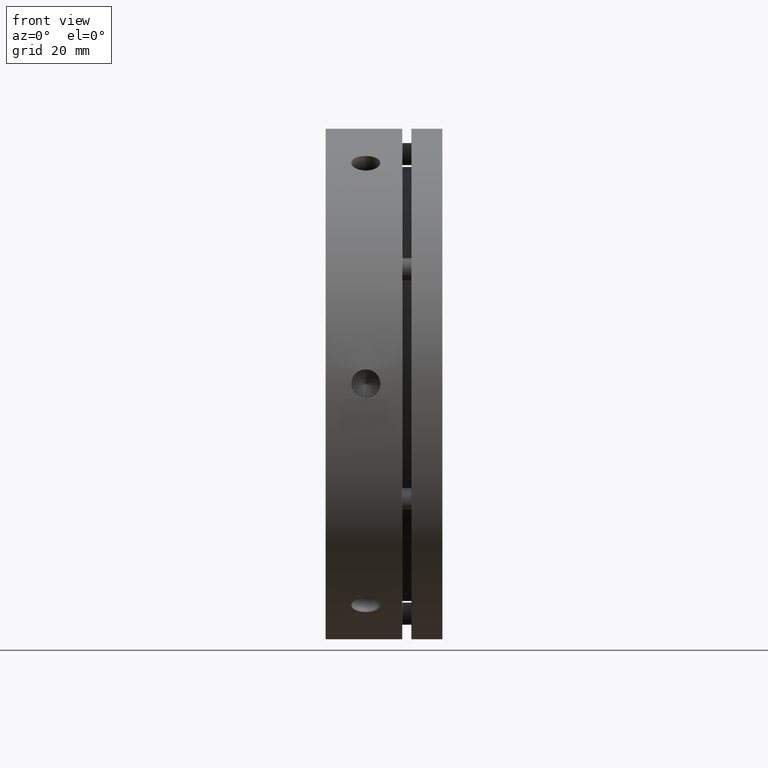
[diagram: clean part render]
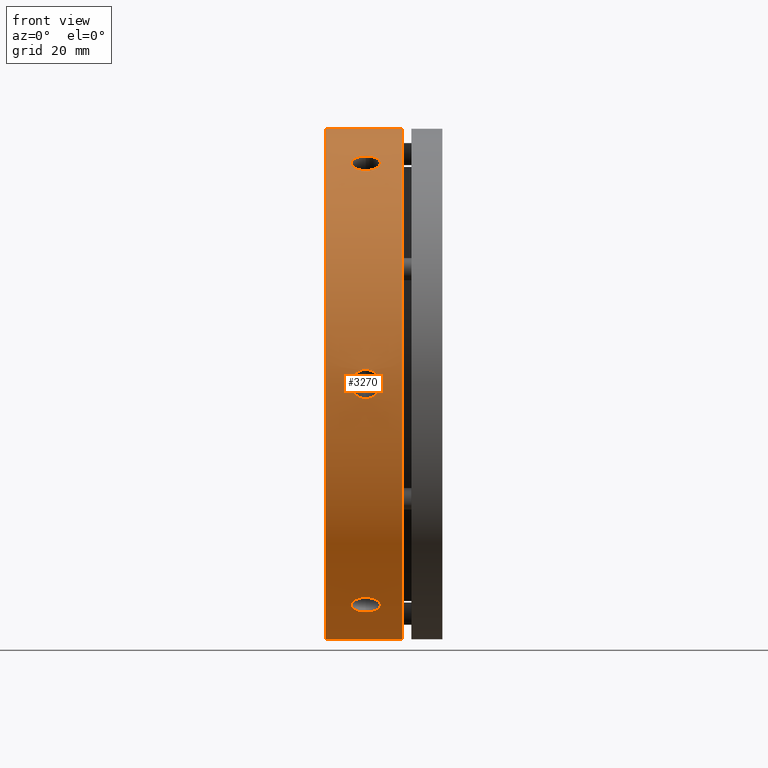
[diagram: same view with one face highlighted and labeled with its STEP entity id]
A machine part, front view. The second image highlights one B-rep face of the part: STEP entity #3270.
In plain terms, the highlighted cylindrical surface (partial cylindrical patch) has radius 70 mm, axis along (1, 0, 0).
Its self-contained STEP definition (entity closure, byte-faithful):
#1 = EDGE_LOOP ( 'NONE', ( #1935, #1934 ) ) ;
#2 = EDGE_LOOP ( 'NONE', ( #1933, #1932 ) ) ;
#3 = EDGE_LOOP ( 'NONE', ( #1941, #1940, #1939, #1938 ) ) ;
#340 = FACE_OUTER_BOUND ( 'NONE', #3, .T. ) ;
#383 = FACE_BOUND ( 'NONE', #1, .T. ) ;
#416 = FACE_BOUND ( 'NONE', #1711, .T. ) ;
#419 = FACE_BOUND ( 'NONE', #2, .T. ) ;
#430 = CYLINDRICAL_SURFACE ( 'NONE', #1379, 70.00000000000000000 ) ;
#480 = VECTOR ( 'NONE', #2717, 1000.000000000000000 ) ;
#481 = LINE ( 'NONE', #2716, #480 ) ;
#607 = EDGE_CURVE ( 'NONE', #1891, #1890, #3687, .T. ) ;
#623 = EDGE_CURVE ( 'NONE', #1887, #1886, #3694, .T. ) ;
#711 = CARTESIAN_POINT ( 'NONE',  ( 8.358326109823563500, -32.35642516407697400, -62.07331679830414800 ) ) ;
#712 = CARTESIAN_POINT ( 'NONE',  ( 7.984942764260604300, -32.68732003523729900, -61.89970934225068100 ) ) ;
#713 = CARTESIAN_POINT ( 'NONE',  ( 7.819331952204462000, -32.86622731628508400, -61.80500026974880300 ) ) ;
#714 = AXIS2_PLACEMENT_3D ( 'NONE', #2328, #2329, #2330 ) ;
#722 = AXIS2_PLACEMENT_3D ( 'NONE', #2430, #2431, #2432 ) ;
#1295 = CARTESIAN_POINT ( 'NONE',  ( 10.47409722909261200, -69.88712906306791700, -3.973891779846702400 ) ) ;
#1302 = CARTESIAN_POINT ( 'NONE',  ( 10.73909664343707400, -69.88562083862461800, -3.999999999999980900 ) ) ;
#1305 = CARTESIAN_POINT ( 'NONE',  ( 10.99999999999998200, -69.88562083862459000, -3.999999999999981800 ) ) ;
#1306 = CARTESIAN_POINT ( 'NONE',  ( 9.961171157766600000, -69.89287088335204600, -3.871591951500740000 ) ) ;
#1307 = CARTESIAN_POINT ( 'NONE',  ( 9.711863930167631100, -69.89707221894985900, -3.795967999799475300 ) ) ;
#1308 = CARTESIAN_POINT ( 'NONE',  ( 9.227641483574140900, -69.90767243269822000, -3.595471162331520500 ) ) ;
#1309 = CARTESIAN_POINT ( 'NONE',  ( 8.993538445030035100, -69.91408303429348300, -3.470160666509753100 ) ) ;
#1310 = CARTESIAN_POINT ( 'NONE',  ( 8.560276930385896300, -69.92785830562034700, -3.180511651693273200 ) ) ;
#1311 = CARTESIAN_POINT ( 'NONE',  ( 8.358326109823556400, -69.93528182652920600, -3.015172231411342700 ) ) ;
#1312 = CARTESIAN_POINT ( 'NONE',  ( 7.984942764260602600, -69.95038079488070100, -2.641805138977804100 ) ) ;
#1313 = CARTESIAN_POINT ( 'NONE',  ( 7.819331952204465500, -69.95781397264907800, -2.439512352417471300 ) ) ;
#1314 = CARTESIAN_POINT ( 'NONE',  ( 7.529775383356610300, -69.97157669719518900, -2.006342657151847700 ) ) ;
#1315 = CARTESIAN_POINT ( 'NONE',  ( 7.404613441409155800, -69.97797343220388200, -1.772563259579204200 ) ) ;
#1316 = CARTESIAN_POINT ( 'NONE',  ( 7.203945541165426300, -69.98857042851334100, -1.287926845930296600 ) ) ;
#1317 = CARTESIAN_POINT ( 'NONE',  ( 7.128357650375536800, -69.99276398680682100, -1.038593095255783100 ) ) ;
#1318 = CARTESIAN_POINT ( 'NONE',  ( 7.026138770024434000, -69.99849262023106200, -0.5260389964781374500 ) ) ;
#1319 = CARTESIAN_POINT ( 'NONE',  ( 6.999817335921259900, -70.00001043794482300, -0.2614808252597358200 ) ) ;
#1320 = CARTESIAN_POINT ( 'NONE',  ( 7.000184595522777700, -69.99998945168694300, 0.2670398810689925100 ) ) ;
#1321 = CARTESIAN_POINT ( 'NONE',  ( 7.026295354285892400, -69.99848382314917200, 0.5268749624503371600 ) ) ;
#1322 = CARTESIAN_POINT ( 'NONE',  ( 7.128260745323915500, -69.99276943931067800, 1.038056347809311700 ) ) ;
#1323 = CARTESIAN_POINT ( 'NONE',  ( 7.205360116913516900, -69.98849342827199400, 1.292060696593722000 ) ) ;
#1324 = CARTESIAN_POINT ( 'NONE',  ( 7.406433696974252400, -69.97787964272140500, 1.776230253022029500 ) ) ;
#1325 = CARTESIAN_POINT ( 'NONE',  ( 7.529430487652942500, -69.97159279482079300, 2.005856868598513600 ) ) ;
#1326 = CARTESIAN_POINT ( 'NONE',  ( 7.819962168245790000, -69.95778431393871700, 2.440424943723678900 ) ) ;
#1327 = CARTESIAN_POINT ( 'NONE',  ( 7.988988254758817600, -69.95021213811574500, 2.646101050891392700 ) ) ;
#1328 = CARTESIAN_POINT ( 'NONE',  ( 8.358145122983289700, -69.93529426283005500, 3.014738016858497200 ) ) ;
#1329 = CARTESIAN_POINT ( 'NONE',  ( 8.559568101244570600, -69.92787661822102100, 3.180166371659435900 ) ) ;
#1330 = CARTESIAN_POINT ( 'NONE',  ( 8.996959498716183400, -69.91397851453211800, 3.472318354372658300 ) ) ;
#1331 = CARTESIAN_POINT ( 'NONE',  ( 9.229718381627362700, -69.90762475236191200, 3.596380207422794000 ) ) ;
#1332 = CARTESIAN_POINT ( 'NONE',  ( 9.711075744254834800, -69.89709169375892400, 3.795592426439149400 ) ) ;
#1333 = CARTESIAN_POINT ( 'NONE',  ( 9.963230547505419900, -69.89283406302762100, 3.872257680621692200 ) ) ;
#1334 = CARTESIAN_POINT ( 'NONE',  ( 10.47954753236176700, -69.88708201975067900, 3.974720074632786200 ) ) ;
#1335 = CARTESIAN_POINT ( 'NONE',  ( 10.73909642550376900, -69.88562083862461800, 4.000000000000020400 ) ) ;
#1336 = CARTESIAN_POINT ( 'NONE',  ( 10.99999999999998200, -69.88562083862459000, 4.000000000000018700 ) ) ;
#1379 = AXIS2_PLACEMENT_3D ( 'NONE', #4324, #4325, #4323 ) ;
#1711 = EDGE_LOOP ( 'NONE', ( #1937, #1936 ) ) ;
#1712 = CARTESIAN_POINT ( 'NONE',  ( 10.73909664343707600, -31.47870880417457000, -62.52272300549602600 ) ) ;
#1713 = CARTESIAN_POINT ( 'NONE',  ( 10.99999999999998200, -31.47870880417457700, -62.52272300549603300 ) ) ;
#1715 = CARTESIAN_POINT ( 'NONE',  ( 10.47409722909261200, -31.50207329829656500, -62.51097505610191300 ) ) ;
#1886 = VERTEX_POINT ( 'NONE', #3932 ) ;
#1887 = VERTEX_POINT ( 'NONE', #3933 ) ;
#1890 = VERTEX_POINT ( 'NONE', #3936 ) ;
#1891 = VERTEX_POINT ( 'NONE', #3937 ) ;
#1894 = VERTEX_POINT ( 'NONE', #3940 ) ;
#1895 = VERTEX_POINT ( 'NONE', #3941 ) ;
#1897 = VERTEX_POINT ( 'NONE', #3943 ) ;
#1898 = VERTEX_POINT ( 'NONE', #3944 ) ;
#1900 = VERTEX_POINT ( 'NONE', #3946 ) ;
#1903 = VERTEX_POINT ( 'NONE', #3949 ) ;
#1932 = ORIENTED_EDGE ( 'NONE', *, *, #3634, .T. ) ;
#1933 = ORIENTED_EDGE ( 'NONE', *, *, #623, .T. ) ;
#1934 = ORIENTED_EDGE ( 'NONE', *, *, #3635, .T. ) ;
#1935 = ORIENTED_EDGE ( 'NONE', *, *, #607, .T. ) ;
#1936 = ORIENTED_EDGE ( 'NONE', *, *, #3636, .T. ) ;
#1937 = ORIENTED_EDGE ( 'NONE', *, *, #3683, .T. ) ;
#1938 = ORIENTED_EDGE ( 'NONE', *, *, #3633, .T. ) ;
#1939 = ORIENTED_EDGE ( 'NONE', *, *, #3678, .T. ) ;
#1940 = ORIENTED_EDGE ( 'NONE', *, *, #3637, .T. ) ;
#1941 = ORIENTED_EDGE ( 'NONE', *, *, #3672, .F. ) ;
#2319 = CARTESIAN_POINT ( 'NONE',  ( 10.99999999999998200, -38.40691203445007300, -58.52272300549602600 ) ) ;
#2323 = CARTESIAN_POINT ( 'NONE',  ( 10.99999999999998200, -69.88562083862459000, 4.000000000000018700 ) ) ;
#2327 = CARTESIAN_POINT ( 'NONE',  ( 11.26090357459180200, -38.40691203445008700, -58.52272300549603300 ) ) ;
#2328 = CARTESIAN_POINT ( 'NONE',  ( 20.99999999999998600, 0.0000000000000000000, 0.0000000000000000000 ) ) ;
#2329 = DIRECTION ( 'NONE',  ( -1.000000000000000000, -0.0000000000000000000, -0.0000000000000000000 ) ) ;
#2330 = DIRECTION ( 'NONE',  ( 0.0000000000000000000, 0.0000000000000000000, -1.000000000000000000 ) ) ;
#2331 = CARTESIAN_POINT ( 'NONE',  ( 11.26090357459180200, -69.88562083862459000, 4.000000000000017800 ) ) ;
#2332 = CARTESIAN_POINT ( 'NONE',  ( 11.52590321161878100, -38.38505572778927900, -58.53708330057948200 ) ) ;
#2333 = CARTESIAN_POINT ( 'NONE',  ( 12.03882968743154600, -38.29933224683603800, -58.59320586903346900 ) ) ;
#2334 = CARTESIAN_POINT ( 'NONE',  ( 12.28813710574236300, -38.23594054770920500, -58.63465637574918800 ) ) ;
#2335 = CARTESIAN_POINT ( 'NONE',  ( 12.77235990841453600, -38.06760501901164400, -58.74408502978541700 ) ) ;
#2336 = CARTESIAN_POINT ( 'NONE',  ( 13.00646307755802100, -37.96228808271799700, -58.81229212645484200 ) ) ;
#2337 = CARTESIAN_POINT ( 'NONE',  ( 13.43972480559535400, -37.71833193225105400, -58.96904660829496000 ) ) ;
#2338 = CARTESIAN_POINT ( 'NONE',  ( 13.64167570933734600, -37.57885533538701100, -59.05814541225753800 ) ) ;
#2339 = CARTESIAN_POINT ( 'NONE',  ( 14.01505916087716100, -37.26305891989633100, -59.25790536110464800 ) ) ;
#2340 = CARTESIAN_POINT ( 'NONE',  ( 14.18066991554423200, -37.09158461055000100, -59.36548919666434200 ) ) ;
#2341 = CARTESIAN_POINT ( 'NONE',  ( 14.47022637849527600, -36.72332948811453000, -59.59399321901695100 ) ) ;
#2342 = CARTESIAN_POINT ( 'NONE',  ( 14.59538823452395200, -36.52406865213805500, -59.71642282834630300 ) ) ;
#2343 = CARTESIAN_POINT ( 'NONE',  ( 14.79605580135352700, -36.10965922406310800, -59.96791856519592300 ) ) ;
#2344 = CARTESIAN_POINT ( 'NONE',  ( 14.87164349298426700, -35.89582639141937600, -60.09621730158370700 ) ) ;
#2345 = CARTESIAN_POINT ( 'NONE',  ( 14.97386188045529900, -35.45480531162257900, -60.35745576643391500 ) ) ;
#2346 = CARTESIAN_POINT ( 'NONE',  ( 15.00018301003966500, -35.22644943742638200, -60.49104969678276700 ) ) ;
#2347 = CARTESIAN_POINT ( 'NONE',  ( 14.99981505114989800, -34.76872705177847700, -60.75529156036637300 ) ) ;
#2348 = CARTESIAN_POINT ( 'NONE',  ( 14.97370400284950000, -34.54295068189450300, -60.88390503917526800 ) ) ;
#2349 = CARTESIAN_POINT ( 'NONE',  ( 14.87173810970992500, -34.09739786729841900, -61.13454664353259500 ) ) ;
#2350 = CARTESIAN_POINT ( 'NONE',  ( 14.79463851539914600, -33.87528585546817100, -61.25784554858627500 ) ) ;
#2351 = CARTESIAN_POINT ( 'NONE',  ( 14.59356464880624300, -33.45067639006342800, -61.49073818138292300 ) ) ;
#2352 = CARTESIAN_POINT ( 'NONE',  ( 14.47056775947381100, -33.24867074539675800, -61.60010676582997700 ) ) ;
#2353 = CARTESIAN_POINT ( 'NONE',  ( 14.18003594599575100, -32.86542000727610700, -61.80543202375329800 ) ) ;
#2354 = CARTESIAN_POINT ( 'NONE',  ( 14.01100985540713900, -32.68351345445585600, -61.90171223082227000 ) ) ;
#2355 = CARTESIAN_POINT ( 'NONE',  ( 13.64185306818236900, -32.35680603325003100, -62.07311118480981100 ) ) ;
#2356 = CARTESIAN_POINT ( 'NONE',  ( 13.44043016016046700, -32.20983227178469800, -62.14940137639079200 ) ) ;
#2357 = CARTESIAN_POINT ( 'NONE',  ( 13.00303895313463400, -31.94987257011110800, -62.28344105116456600 ) ) ;
#2358 = CARTESIAN_POINT ( 'NONE',  ( 12.77028024414253900, -31.83925516559750300, -62.33996935819796900 ) ) ;
#2359 = CARTESIAN_POINT ( 'NONE',  ( 12.28892321856022800, -31.66146608180331200, -62.43045342324455800 ) ) ;
#2360 = CARTESIAN_POINT ( 'NONE',  ( 12.03676859265589300, -31.59294331804092000, -62.46509877844754800 ) ) ;
#2361 = CARTESIAN_POINT ( 'NONE',  ( 11.52045203420232700, -31.50133241489862400, -62.51134848156942100 ) ) ;
#2362 = CARTESIAN_POINT ( 'NONE',  ( 11.26090335665848700, -31.47870880417458000, -62.52272300549606100 ) ) ;
#2363 = CARTESIAN_POINT ( 'NONE',  ( 10.99999999999998200, -31.47870880417457700, -62.52272300549603300 ) ) ;
#2364 = CARTESIAN_POINT ( 'NONE',  ( 11.26090357459180100, -31.47870880417454100, 62.52272300549606100 ) ) ;
#2365 = CARTESIAN_POINT ( 'NONE',  ( 10.99999999999998200, -31.47870880417452700, 62.52272300549604700 ) ) ;
#2366 = CARTESIAN_POINT ( 'NONE',  ( 11.52590321161878400, -69.88712906564231300, 3.973891735657145500 ) ) ;
#2367 = CARTESIAN_POINT ( 'NONE',  ( 12.03882968743154100, -69.89287089517245000, 3.871591739223800400 ) ) ;
#2368 = CARTESIAN_POINT ( 'NONE',  ( 12.28813710574236100, -69.89707223742462400, 3.795967664033045100 ) ) ;
#2369 = CARTESIAN_POINT ( 'NONE',  ( 12.77235990841452600, -69.90767246737310400, 3.595470492803355600 ) ) ;
#2370 = CARTESIAN_POINT ( 'NONE',  ( 13.00646307755802200, -69.91408307766042200, 3.470159802189607000 ) ) ;
#2371 = CARTESIAN_POINT ( 'NONE',  ( 13.43972480559535900, -69.92785836585756000, 3.180510337555734900 ) ) ;
#2372 = CARTESIAN_POINT ( 'NONE',  ( 13.64167570933734600, -69.93528189510394100, 3.015170659456782400 ) ) ;
#2373 = CARTESIAN_POINT ( 'NONE',  ( 14.01505916087716300, -69.95038087771885700, 2.641802966794205300 ) ) ;
#2374 = CARTESIAN_POINT ( 'NONE',  ( 14.18066991554422700, -69.95781405767699800, 2.439509941024056600 ) ) ;
#2375 = CARTESIAN_POINT ( 'NONE',  ( 14.47022637849527300, -69.97157678468350600, 2.006339638744867800 ) ) ;
#2376 = CARTESIAN_POINT ( 'NONE',  ( 14.59538823452395200, -69.97797351854991600, 1.772559888145250900 ) ) ;
#2377 = CARTESIAN_POINT ( 'NONE',  ( 14.79605580135351900, -69.98857050156769300, 1.287922927439762300 ) ) ;
#2378 = CARTESIAN_POINT ( 'NONE',  ( 14.87164349298426400, -69.99276405023107400, 1.038588894013210600 ) ) ;
#2379 = CARTESIAN_POINT ( 'NONE',  ( 14.97386188045530300, -69.99849265733861600, 0.5260342028796334300 ) ) ;
#2380 = CARTESIAN_POINT ( 'NONE',  ( 15.00018301003966300, -70.00001045771402600, 0.2614752495478921400 ) ) ;
#2381 = CARTESIAN_POINT ( 'NONE',  ( 14.99981505114990400, -69.99998943149682900, -0.2670448960958208800 ) ) ;
#2382 = CARTESIAN_POINT ( 'NONE',  ( 14.97370400284950000, -69.99848378647244800, -0.5268797073940165700 ) ) ;
#2383 = CARTESIAN_POINT ( 'NONE',  ( 14.87173810970992200, -69.99276937579311700, -1.038060565740534600 ) ) ;
#2384 = CARTESIAN_POINT ( 'NONE',  ( 14.79463851539914300, -69.98849335391328500, -1.292064662998045500 ) ) ;
#2385 = CARTESIAN_POINT ( 'NONE',  ( 14.59356464880624300, -69.97787955756706400, -1.776233563124206500 ) ) ;
#2386 = CARTESIAN_POINT ( 'NONE',  ( 14.47056775947380600, -69.97159270774082500, -2.005859875336927400 ) ) ;
#2387 = CARTESIAN_POINT ( 'NONE',  ( 14.18003594599574600, -69.95778422808064100, -2.440427379530200300 ) ) ;
#2388 = CARTESIAN_POINT ( 'NONE',  ( 14.01100985540713100, -69.95021205687389500, -2.646103178921889800 ) ) ;
#2389 = CARTESIAN_POINT ( 'NONE',  ( 13.64185306818236600, -69.93529419460630000, -3.014739582284816000 ) ) ;
#2390 = CARTESIAN_POINT ( 'NONE',  ( 13.44043016016046400, -69.92787655784233900, -3.180167689194022300 ) ) ;
#2391 = CARTESIAN_POINT ( 'NONE',  ( 13.00303895313463400, -69.91397847047460300, -3.472319232190466100 ) ) ;
#2392 = CARTESIAN_POINT ( 'NONE',  ( 12.77028024414253500, -69.90762471814166200, -3.596380868116641100 ) ) ;
#2393 = CARTESIAN_POINT ( 'NONE',  ( 12.28892321856021900, -69.89709167521259300, -3.795592763721251700 ) ) ;
#2394 = CARTESIAN_POINT ( 'NONE',  ( 12.03676859265588900, -69.89283405106033300, -3.872257895478524900 ) ) ;
#2395 = CARTESIAN_POINT ( 'NONE',  ( 11.52045203420232700, -69.88708201731019200, -3.974720116424315600 ) ) ;
#2396 = CARTESIAN_POINT ( 'NONE',  ( 11.26090335665847600, -69.88562083862459000, -3.999999999999981800 ) ) ;
#2397 = CARTESIAN_POINT ( 'NONE',  ( 10.99999999999998200, -69.88562083862459000, -3.999999999999981800 ) ) ;
#2398 = CARTESIAN_POINT ( 'NONE',  ( 11.52590321161878400, -31.50207333785303000, 62.51097503623663700 ) ) ;
#2399 = CARTESIAN_POINT ( 'NONE',  ( 12.03882968743154400, -31.59353864833642300, 62.46479760825722100 ) ) ;
#2400 = CARTESIAN_POINT ( 'NONE',  ( 12.28813710574236100, -31.66113168971541800, 62.43062403978224500 ) ) ;
#2401 = CARTESIAN_POINT ( 'NONE',  ( 12.77235990841452700, -31.84006744836149500, 62.33955552258877500 ) ) ;
#2402 = CARTESIAN_POINT ( 'NONE',  ( 13.00646307755801700, -31.95179499494241100, 62.28245192864442000 ) ) ;
#2403 = CARTESIAN_POINT ( 'NONE',  ( 13.43972480559534900, -32.20952643360647700, 62.14955694585067600 ) ) ;
#2404 = CARTESIAN_POINT ( 'NONE',  ( 13.64167570933734200, -32.35642655971692200, 62.07331607171430200 ) ) ;
#2405 = CARTESIAN_POINT ( 'NONE',  ( 14.01505916087716300, -32.68732195782256900, 61.89970832789887800 ) ) ;
#2406 = CARTESIAN_POINT ( 'NONE',  ( 14.18066991554422500, -32.86622944712696200, 61.80499913768839800 ) ) ;
#2407 = CARTESIAN_POINT ( 'NONE',  ( 14.47022637849527300, -33.24824729656900500, 61.60033285776182800 ) ) ;
#2408 = CARTESIAN_POINT ( 'NONE',  ( 14.59538823452395400, -33.45390486641188900, 61.48898271649158400 ) ) ;
#2409 = CARTESIAN_POINT ( 'NONE',  ( 14.79605580135351900, -33.87891127750459200, 61.25584149263568900 ) ) ;
#2410 = CARTESIAN_POINT ( 'NONE',  ( 14.87164349298426200, -34.09693765881170400, 61.13480619559693000 ) ) ;
#2411 = CARTESIAN_POINT ( 'NONE',  ( 14.97386188045530300, -34.54368734571605900, 60.88348996931358700 ) ) ;
#2412 = CARTESIAN_POINT ( 'NONE',  ( 15.00018301003966700, -34.77356102028767300, 60.75252494633068800 ) ) ;
#2413 = CARTESIAN_POINT ( 'NONE',  ( 14.99981505114990600, -35.23126237971836600, 60.48824666427057700 ) ) ;
#2414 = CARTESIAN_POINT ( 'NONE',  ( 14.97370400284950700, -35.45553310457794500, 60.35702533178129400 ) ) ;
#2415 = CARTESIAN_POINT ( 'NONE',  ( 14.87173810970993100, -35.89537150849469100, 60.09648607779207900 ) ) ;
#2416 = CARTESIAN_POINT ( 'NONE',  ( 14.79463851539914100, -36.11320749844514200, 59.96578088558823100 ) ) ;
#2417 = CARTESIAN_POINT ( 'NONE',  ( 14.59356464880624700, -36.52720316750365000, 59.71450461825872900 ) ) ;
#2418 = CARTESIAN_POINT ( 'NONE',  ( 14.47056775947381600, -36.72292196234408100, 59.59424689049306800 ) ) ;
#2419 = CARTESIAN_POINT ( 'NONE',  ( 14.18003594599575300, -37.09236422080456200, 59.36500464422311300 ) ) ;
#2420 = CARTESIAN_POINT ( 'NONE',  ( 14.01100985540713900, -37.26669860241806000, 59.25560905190038600 ) ) ;
#2421 = CARTESIAN_POINT ( 'NONE',  ( 13.64185306818236900, -37.57848816135629000, 59.05837160252500700 ) ) ;
#2422 = CARTESIAN_POINT ( 'NONE',  ( 13.44043016016046900, -37.71804428605763300, 58.96923368719677700 ) ) ;
#2423 = CARTESIAN_POINT ( 'NONE',  ( 13.00303895313463800, -37.96410590036352100, 58.81112181897408700 ) ) ;
#2424 = CARTESIAN_POINT ( 'NONE',  ( 12.77028024414253900, -38.06836955254417600, 58.74358849008132900 ) ) ;
#2425 = CARTESIAN_POINT ( 'NONE',  ( 12.28892321856023000, -38.23562559340928900, 58.63486065952328400 ) ) ;
#2426 = CARTESIAN_POINT ( 'NONE',  ( 12.03676859265589100, -38.29989073301944600, 58.59284088296902100 ) ) ;
#2427 = CARTESIAN_POINT ( 'NONE',  ( 11.52045203420232900, -38.38574960241160700, 58.53662836514510600 ) ) ;
#2428 = CARTESIAN_POINT ( 'NONE',  ( 11.26090335665848000, -38.40691203445003800, 58.52272300549605400 ) ) ;
#2429 = CARTESIAN_POINT ( 'NONE',  ( 10.99999999999998200, -38.40691203445004500, 58.52272300549606900 ) ) ;
#2430 = CARTESIAN_POINT ( 'NONE',  ( -2.081668171172168500E-014, 0.0000000000000000000, 0.0000000000000000000 ) ) ;
#2431 = DIRECTION ( 'NONE',  ( 1.000000000000000000, 0.0000000000000000000, 0.0000000000000000000 ) ) ;
#2432 = DIRECTION ( 'NONE',  ( 0.0000000000000000000, 0.0000000000000000000, -1.000000000000000000 ) ) ;
#2574 = CARTESIAN_POINT ( 'NONE',  ( 15.99999999999997900, 8.572527594031473000E-015, 70.00000000000000000 ) ) ;
#2607 = DIRECTION ( 'NONE',  ( 1.000000000000000000, 0.0000000000000000000, 0.0000000000000000000 ) ) ;
#2716 = CARTESIAN_POINT ( 'NONE',  ( 15.99999999999997900, 0.0000000000000000000, -70.00000000000000000 ) ) ;
#2717 = DIRECTION ( 'NONE',  ( 1.000000000000000000, 0.0000000000000000000, 0.0000000000000000000 ) ) ;
#2727 = CARTESIAN_POINT ( 'NONE',  ( 10.73909664343707600, -38.40691203445005200, 58.52272300549605400 ) ) ;
#2729 = CARTESIAN_POINT ( 'NONE',  ( 10.99999999999998200, -38.40691203445004500, 58.52272300549606900 ) ) ;
#2730 = CARTESIAN_POINT ( 'NONE',  ( 10.47409722909261200, -38.38505576477137300, 58.53708327625523100 ) ) ;
#2731 = CARTESIAN_POINT ( 'NONE',  ( 9.961171157766596500, -38.29933242476303700, 58.59320575265820000 ) ) ;
#2732 = CARTESIAN_POINT ( 'NONE',  ( 9.711863930167625700, -38.23594082925406900, 58.63465619186637000 ) ) ;
#2733 = CARTESIAN_POINT ( 'NONE',  ( 9.227641483574137400, -38.06760558150256900, 58.74408466499200200 ) ) ;
#2734 = CARTESIAN_POINT ( 'NONE',  ( 8.993538445030024400, -37.96228880955769800, 58.81229165673788400 ) ) ;
#2735 = CARTESIAN_POINT ( 'NONE',  ( 8.560276930385894500, -37.71833304020894700, 58.96904589905925300 ) ) ;
#2736 = CARTESIAN_POINT ( 'NONE',  ( 8.358326109823554600, -37.57885666245225300, 59.05814456689282100 ) ) ;
#2737 = CARTESIAN_POINT ( 'NONE',  ( 7.984942764260600800, -37.26306075964339500, 59.25790420327289400 ) ) ;
#2738 = CARTESIAN_POINT ( 'NONE',  ( 7.819331952204463800, -37.09158665636402900, 59.36548791733132900 ) ) ;
#2739 = CARTESIAN_POINT ( 'NONE',  ( 7.529775383356605900, -36.72333205838744900, 59.59399163404632600 ) ) ;
#2740 = CARTESIAN_POINT ( 'NONE',  ( 7.404613441409152200, -36.52407152871247600, 59.71642106785146400 ) ) ;
#2741 = CARTESIAN_POINT ( 'NONE',  ( 7.203945541165424500, -36.10966258104826900, 59.96791654268374600 ) ) ;
#2742 = CARTESIAN_POINT ( 'NONE',  ( 7.128357650375535000, -35.89582999809002900, 60.09621514603541200 ) ) ;
#2743 = CARTESIAN_POINT ( 'NONE',  ( 7.026138770024433100, -35.45480944444685900, 60.35745333749857600 ) ) ;
#2744 = CARTESIAN_POINT ( 'NONE',  ( 6.999817335921259000, -35.22645425624986600, 60.49104689180624200 ) ) ;
#2745 = CARTESIAN_POINT ( 'NONE',  ( 7.000184595522780400, -34.76873140501416500, 60.75528907033812200 ) ) ;
#2746 = CARTESIAN_POINT ( 'NONE',  ( 7.026295354285893200, -34.54295480947461500, 60.88390269846642200 ) ) ;
#2747 = CARTESIAN_POINT ( 'NONE',  ( 7.128260745323917300, -34.09740155189278000, 61.13454458957482300 ) ) ;
#2748 = CARTESIAN_POINT ( 'NONE',  ( 7.205360116913518600, -33.87528932765442100, 61.25784362978065900 ) ) ;
#2749 = CARTESIAN_POINT ( 'NONE',  ( 7.406433696974252400, -33.45067929927318300, 61.49073660007765300 ) ) ;
#2750 = CARTESIAN_POINT ( 'NONE',  ( 7.529430487652947000, -33.24867339284857300, 61.60010533787423300 ) ) ;
#2751 = CARTESIAN_POINT ( 'NONE',  ( 7.819962168245793600, -32.86542215967543300, 61.80543088020527200 ) ) ;
#2752 = CARTESIAN_POINT ( 'NONE',  ( 7.988988254758817600, -32.68351533800521500, 61.90171123716449800 ) ) ;
#2753 = CARTESIAN_POINT ( 'NONE',  ( 8.358145122983286200, -32.35680742306085000, 62.07311046118020000 ) ) ;
#2754 = CARTESIAN_POINT ( 'NONE',  ( 8.559568101244570600, -32.20983344299245500, 62.14940076991296500 ) ) ;
#2755 = CARTESIAN_POINT ( 'NONE',  ( 8.996959498716185200, -31.94987335235235200, 62.28344065041058300 ) ) ;
#2756 = CARTESIAN_POINT ( 'NONE',  ( 9.229718381627362700, -31.83925575488526100, 62.33996905748662700 ) ) ;
#2757 = CARTESIAN_POINT ( 'NONE',  ( 9.711075744254836600, -31.66146638317134800, 62.43045327066509700 ) ) ;
#2758 = CARTESIAN_POINT ( 'NONE',  ( 9.963230547505416400, -31.59294351009601300, 62.46509868138311800 ) ) ;
#2759 = CARTESIAN_POINT ( 'NONE',  ( 10.47954753236176200, -31.50133245231137000, 62.51134846278714700 ) ) ;
#2760 = CARTESIAN_POINT ( 'NONE',  ( 10.73909642550375500, -31.47870880417452700, 62.52272300549604700 ) ) ;
#2761 = CARTESIAN_POINT ( 'NONE',  ( 10.99999999999998200, -31.47870880417452700, 62.52272300549604700 ) ) ;
#3270 = ADVANCED_FACE ( 'NONE', ( #340, #416, #383, #419 ), #430, .T. ) ;
#3308 = VECTOR ( 'NONE', #2607, 1000.000000000000000 ) ;
#3309 = LINE ( 'NONE', #2574, #3308 ) ;
#3364 = CIRCLE ( 'NONE', #722, 70.00000000000000000 ) ;
#3365 = CIRCLE ( 'NONE', #714, 70.00000000000000000 ) ;
#3633 = EDGE_CURVE ( 'NONE', #1897, #1898, #3365, .T. ) ;
#3634 = EDGE_CURVE ( 'NONE', #1886, #1887, #3693, .T. ) ;
#3635 = EDGE_CURVE ( 'NONE', #1890, #1891, #3698, .T. ) ;
#3636 = EDGE_CURVE ( 'NONE', #1894, #1895, #3686, .T. ) ;
#3637 = EDGE_CURVE ( 'NONE', #1900, #1903, #3364, .T. ) ;
#3672 = EDGE_CURVE ( 'NONE', #1900, #1898, #3309, .T. ) ;
#3678 = EDGE_CURVE ( 'NONE', #1903, #1897, #481, .T. ) ;
#3683 = EDGE_CURVE ( 'NONE', #1895, #1894, #3695, .T. ) ;
#3686 = B_SPLINE_CURVE_WITH_KNOTS ( 'NONE', 3,
 ( #2365, #2364, #2398, #2399, #2400, #2401, #2402, #2403, #2404, #2405, #2406, #2407, #2408, #2409, #2410, #2411, #2412, #2413, #2414, #2415, #2416, #2417, #2418, #2419, #2420, #2421, #2422, #2423, #2424, #2425, #2426, #2427, #2428, #2429 ),
 .UNSPECIFIED., .F., .F.,
 ( 4, 2, 2, 2, 2, 2, 2, 2, 2, 2, 2, 2, 2, 2, 2, 2, 4 ),
 ( 0.006255612392196417500, 0.007037221417040134000, 0.007818830441883847800, 0.008600439466727562500, 0.009382048491571277200, 0.01016365751641499200, 0.01094526654125870700, 0.01172687556610242000, 0.01250848459094613400, 0.01329009361578984900, 0.01407170264063356200, 0.01485331166547727800, 0.01563492069032099100, 0.01641652971516470800, 0.01719813874000842400, 0.01797974776485213700, 0.01876135678969585400 ),
 .UNSPECIFIED. ) ;
#3687 = B_SPLINE_CURVE_WITH_KNOTS ( 'NONE', 3,
 ( #1305, #1302, #1295, #1306, #1307, #1308, #1309, #1310, #1311, #1312, #1313, #1314, #1315, #1316, #1317, #1318, #1319, #1320, #1321, #1322, #1323, #1324, #1325, #1326, #1327, #1328, #1329, #1330, #1331, #1332, #1333, #1334, #1335, #1336 ),
 .UNSPECIFIED., .F., .F.,
 ( 4, 2, 2, 2, 2, 2, 2, 2, 2, 2, 2, 2, 2, 2, 2, 2, 4 ),
 ( 0.01876135678969587100, 0.01954296581425320200, 0.02032457483881053600, 0.02110618386336786700, 0.02188779288792519800, 0.02266940191248253300, 0.02345101093703986400, 0.02423261996159719500, 0.02501422898615452600, 0.02579583801071185700, 0.02657744703526919100, 0.02735905605982652200, 0.02814066508438384900, 0.02892227410894118400, 0.02970388313349851100, 0.03048549215805584200, 0.03126710118261317300 ),
 .UNSPECIFIED. ) ;
#3693 = B_SPLINE_CURVE_WITH_KNOTS ( 'NONE', 3,
 ( #2319, #2327, #2332, #2333, #2334, #2335, #2336, #2337, #2338, #2339, #2340, #2341, #2342, #2343, #2344, #2345, #2346, #2347, #2348, #2349, #2350, #2351, #2352, #2353, #2354, #2355, #2356, #2357, #2358, #2359, #2360, #2361, #2362, #2363 ),
 .UNSPECIFIED., .F., .F.,
 ( 4, 2, 2, 2, 2, 2, 2, 2, 2, 2, 2, 2, 2, 2, 2, 2, 4 ),
 ( 0.006255612392196408800, 0.007037221417040124400, 0.007818830441883840900, 0.008600439466727557300, 0.009382048491571272000, 0.01016365751641498700, 0.01094526654125870300, 0.01172687556610242000, 0.01250848459094613600, 0.01329009361578985100, 0.01407170264063356500, 0.01485331166547728200, 0.01563492069032099800, 0.01641652971516471500, 0.01719813874000843100, 0.01797974776485214400, 0.01876135678969585700 ),
 .UNSPECIFIED. ) ;
#3694 = B_SPLINE_CURVE_WITH_KNOTS ( 'NONE', 3,
 ( #1713, #1712, #1715, #4751, #4755, #4753, #4754, #4752, #711, #712, #713, #3699, #3742, #3743, #3744, #3745, #3746, #3747, #3748, #3749, #3750, #3751, #3752, #3753, #3754, #3755, #3756, #3757, #3758, #3759, #3760, #3761, #3762, #3763 ),
 .UNSPECIFIED., .F., .F.,
 ( 4, 2, 2, 2, 2, 2, 2, 2, 2, 2, 2, 2, 2, 2, 2, 2, 4 ),
 ( 0.01876135678969585700, 0.01954296581425318800, 0.02032457483881051900, 0.02110618386336785000, 0.02188779288792517700, 0.02266940191248250800, 0.02345101093703983900, 0.02423261996159717400, 0.02501422898615450500, 0.02579583801071183600, 0.02657744703526916700, 0.02735905605982649800, 0.02814066508438382900, 0.02892227410894116300, 0.02970388313349849400, 0.03048549215805582800, 0.03126710118261315900 ),
 .UNSPECIFIED. ) ;
#3695 = B_SPLINE_CURVE_WITH_KNOTS ( 'NONE', 3,
 ( #2729, #2727, #2730, #2731, #2732, #2733, #2734, #2735, #2736, #2737, #2738, #2739, #2740, #2741, #2742, #2743, #2744, #2745, #2746, #2747, #2748, #2749, #2750, #2751, #2752, #2753, #2754, #2755, #2756, #2757, #2758, #2759, #2760, #2761 ),
 .UNSPECIFIED., .F., .F.,
 ( 4, 2, 2, 2, 2, 2, 2, 2, 2, 2, 2, 2, 2, 2, 2, 2, 4 ),
 ( 0.01876135678969585400, 0.01954296581425318500, 0.02032457483881051200, 0.02110618386336784300, 0.02188779288792517400, 0.02266940191248250500, 0.02345101093703983600, 0.02423261996159716700, 0.02501422898615449800, 0.02579583801071182900, 0.02657744703526916000, 0.02735905605982649100, 0.02814066508438382200, 0.02892227410894115300, 0.02970388313349848300, 0.03048549215805581400, 0.03126710118261314500 ),
 .UNSPECIFIED. ) ;
#3698 = B_SPLINE_CURVE_WITH_KNOTS ( 'NONE', 3,
 ( #2323, #2331, #2366, #2367, #2368, #2369, #2370, #2371, #2372, #2373, #2374, #2375, #2376, #2377, #2378, #2379, #2380, #2381, #2382, #2383, #2384, #2385, #2386, #2387, #2388, #2389, #2390, #2391, #2392, #2393, #2394, #2395, #2396, #2397 ),
 .UNSPECIFIED., .F., .F.,
 ( 4, 2, 2, 2, 2, 2, 2, 2, 2, 2, 2, 2, 2, 2, 2, 2, 4 ),
 ( 0.006255612392196418400, 0.007037221417040134000, 0.007818830441883849500, 0.008600439466727566000, 0.009382048491571280700, 0.01016365751641499700, 0.01094526654125871400, 0.01172687556610243000, 0.01250848459094614500, 0.01329009361578985900, 0.01407170264063357600, 0.01485331166547729200, 0.01563492069032100900, 0.01641652971516472500, 0.01719813874000843800, 0.01797974776485215500, 0.01876135678969587100 ),
 .UNSPECIFIED. ) ;
#3699 = CARTESIAN_POINT ( 'NONE',  ( 7.529775383356606800, -33.24824463880771900, -61.60033429119816600 ) ) ;
#3742 = CARTESIAN_POINT ( 'NONE',  ( 7.404613441409154900, -33.45390190349141300, -61.48898432743069300 ) ) ;
#3743 = CARTESIAN_POINT ( 'NONE',  ( 7.203945541165430700, -33.87890784746509400, -61.25584338861405300 ) ) ;
#3744 = CARTESIAN_POINT ( 'NONE',  ( 7.128357650375537700, -34.09693398871680600, -61.13480824129116800 ) ) ;
#3745 = CARTESIAN_POINT ( 'NONE',  ( 7.026138770024434000, -34.54368317578418900, -60.88349233397669700 ) ) ;
#3746 = CARTESIAN_POINT ( 'NONE',  ( 6.999817335921259900, -34.77355618169497100, -60.75252771706597300 ) ) ;
#3747 = CARTESIAN_POINT ( 'NONE',  ( 7.000184595522779500, -35.23125804667281400, -60.48824918926914800 ) ) ;
#3748 = CARTESIAN_POINT ( 'NONE',  ( 7.026295354285891500, -35.45552901367456400, -60.35702773601606500 ) ) ;
#3749 = CARTESIAN_POINT ( 'NONE',  ( 7.128260745323912000, -35.89536788741791200, -60.09648824176549200 ) ) ;
#3750 = CARTESIAN_POINT ( 'NONE',  ( 7.205360116913521300, -36.11320410061760100, -59.96578293318692900 ) ) ;
#3751 = CARTESIAN_POINT ( 'NONE',  ( 7.406433696974256800, -36.52720034344827100, -59.71450634705566100 ) ) ;
#3752 = CARTESIAN_POINT ( 'NONE',  ( 7.529430487652947000, -36.72291940197221300, -59.59424846927569800 ) ) ;
#3753 = CARTESIAN_POINT ( 'NONE',  ( 7.819962168245797200, -37.09236215426327700, -59.36500593648158700 ) ) ;
#3754 = CARTESIAN_POINT ( 'NONE',  ( 7.988988254758815800, -37.26669680011052300, -59.25561018627312400 ) ) ;
#3755 = CARTESIAN_POINT ( 'NONE',  ( 8.358145122983293300, -37.57848683976922600, -59.05837244432168400 ) ) ;
#3756 = CARTESIAN_POINT ( 'NONE',  ( 8.559568101244568800, -37.71804317522857300, -58.96923439825354100 ) ) ;
#3757 = CARTESIAN_POINT ( 'NONE',  ( 8.996959498716185200, -37.96410516217977700, -58.81112229603792900 ) ) ;
#3758 = CARTESIAN_POINT ( 'NONE',  ( 9.229718381627359100, -38.06836899747663900, -58.74358885006383000 ) ) ;
#3759 = CARTESIAN_POINT ( 'NONE',  ( 9.711075744254829400, -38.23562531058759400, -58.63486084422590500 ) ) ;
#3760 = CARTESIAN_POINT ( 'NONE',  ( 9.963230547505421700, -38.29989055293160800, -58.59284100076142500 ) ) ;
#3761 = CARTESIAN_POINT ( 'NONE',  ( 10.47954753236176900, -38.38574956743931900, -58.53662838815437700 ) ) ;
#3762 = CARTESIAN_POINT ( 'NONE',  ( 10.73909642550376900, -38.40691203445008000, -58.52272300549605400 ) ) ;
#3763 = CARTESIAN_POINT ( 'NONE',  ( 10.99999999999998200, -38.40691203445007300, -58.52272300549602600 ) ) ;
#3932 = CARTESIAN_POINT ( 'NONE',  ( 10.99999999999998200, -38.40691203445007300, -58.52272300549602600 ) ) ;
#3933 = CARTESIAN_POINT ( 'NONE',  ( 10.99999999999998200, -31.47870880417457700, -62.52272300549603300 ) ) ;
#3936 = CARTESIAN_POINT ( 'NONE',  ( 10.99999999999998200, -69.88562083862459000, 4.000000000000018700 ) ) ;
#3937 = CARTESIAN_POINT ( 'NONE',  ( 10.99999999999998200, -69.88562083862459000, -3.999999999999981800 ) ) ;
#3940 = CARTESIAN_POINT ( 'NONE',  ( 10.99999999999998200, -31.47870880417452700, 62.52272300549604700 ) ) ;
#3941 = CARTESIAN_POINT ( 'NONE',  ( 10.99999999999998200, -38.40691203445004500, 58.52272300549606900 ) ) ;
#3943 = CARTESIAN_POINT ( 'NONE',  ( 20.99999999999998600, 0.0000000000000000000, -70.00000000000000000 ) ) ;
#3944 = CARTESIAN_POINT ( 'NONE',  ( 20.99999999999998600, 8.572527594031473000E-015, 70.00000000000000000 ) ) ;
#3946 = CARTESIAN_POINT ( 'NONE',  ( -2.081668171172168500E-014, 8.572527594031473000E-015, 70.00000000000000000 ) ) ;
#3949 = CARTESIAN_POINT ( 'NONE',  ( -2.081668171172168500E-014, 0.0000000000000000000, -70.00000000000000000 ) ) ;
#4323 = DIRECTION ( 'NONE',  ( 0.0000000000000000000, 0.0000000000000000000, -1.000000000000000000 ) ) ;
#4324 = CARTESIAN_POINT ( 'NONE',  ( 15.99999999999997900, 0.0000000000000000000, 0.0000000000000000000 ) ) ;
#4325 = DIRECTION ( 'NONE',  ( 1.000000000000000000, 0.0000000000000000000, 0.0000000000000000000 ) ) ;
#4751 = CARTESIAN_POINT ( 'NONE',  ( 9.961171157766598200, -31.59353845858902700, -62.46479770415894700 ) ) ;
#4752 = CARTESIAN_POINT ( 'NONE',  ( 8.560276930385898100, -32.20952526541140100, -62.14955755075249800 ) ) ;
#4753 = CARTESIAN_POINT ( 'NONE',  ( 9.227641483574139200, -31.84006685119567600, -62.33955582732351500 ) ) ;
#4754 = CARTESIAN_POINT ( 'NONE',  ( 8.993538445030035100, -31.95179422473575700, -62.28245232324763900 ) ) ;
#4755 = CARTESIAN_POINT ( 'NONE',  ( 9.711863930167627500, -31.66113138969579300, -62.43062419166586400 ) ) ;